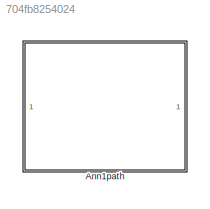
MODEL slx_704fb8254024
KIND library
CONFIG AbsTol = auto
CONFIG EnableMultiTasking = off
CONFIG FixedStep = auto
CONFIG MaxStep = auto
CONFIG MinStep = auto
CONFIG RelTol = 1e-3
CONFIG SampleTimeConstraint = Unconstrained
CONFIG SolverName = VariableStepAuto
CONFIG StartTime = 0.0
CONFIG StopTime = 10.0
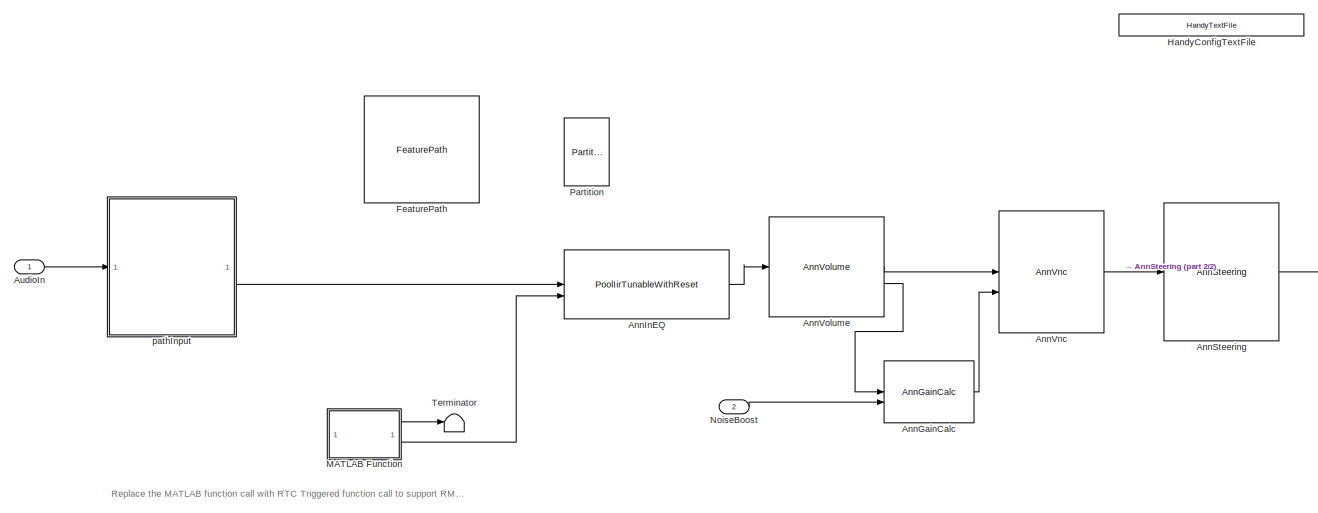
[diagram: Ann1path - part 1/2, left side, full height]
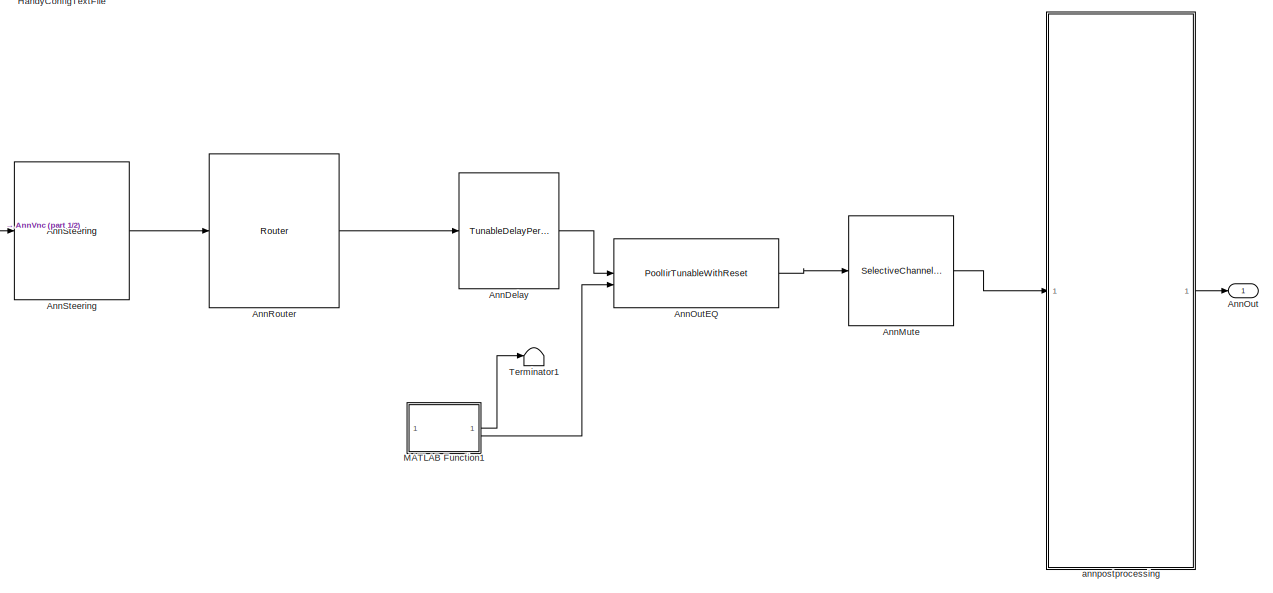
[diagram: Ann1path - part 2/2, right side, full height]
BLOCK [SubSystem] Ann1path
  LibrarySourceBlock = Ann1Path/Ann1path
  TreatAsAtomicUnit = on
BLOCK [Reference] Ann1path/AnnDelay  REF=TunableDelayBtc/TunableDelayPerChannel
  SourceBlock = TunableDelayBtc/TunableDelayPerChannel
  SourceProductName = Bose Blocklib
  SourceType = Tunable Delay
BLOCK [Reference] Ann1path/AnnGainCalc  REF=AnnGainCalcBtc/AnnGainCalc
  SourceBlock = AnnGainCalcBtc/AnnGainCalc
  SourceProductName = Bose Blocklib
  SourceType = Blocklib AnnGainCalc
BLOCK [Reference] Ann1path/AnnInEQ  REF=PoolIir/PoolIirTunableWithReset
  SourceBlock = PoolIir/PoolIirTunableWithReset
  SourceType = Bose Pool IIR Tunable
BLOCK [Reference] Ann1path/AnnMute  REF=SelectiveChannelMuteBtc/SelectiveChannelMute
  SourceBlock = SelectiveChannelMuteBtc/SelectiveChannelMute
  SourceProductName = Bose Blocklib
  SourceType = Bose Selective Channel Mute
BLOCK [Outport] Ann1path/AnnOut
BLOCK [Reference] Ann1path/AnnOutEQ  REF=PoolIir/PoolIirTunableWithReset
  SourceBlock = PoolIir/PoolIirTunableWithReset
  SourceType = Bose Pool IIR Tunable
BLOCK [Reference] Ann1path/AnnRouter  REF=RouterBtc/Router
  SourceBlock = RouterBtc/Router
  SourceProductName = Bose Blocklib
  SourceType = Blocklib Router
BLOCK [Reference] Ann1path/AnnSteering  REF=AnnSteeringBtc/AnnSteering
  SourceBlock = AnnSteeringBtc/AnnSteering
  SourceProductName = Bose Blocklib
  SourceType = Blocklib AnnSteering
BLOCK [Reference] Ann1path/AnnVnc  REF=AnnVncBtc/AnnVnc
  SourceBlock = AnnVncBtc/AnnVnc
  SourceProductName = Bose Blocklib
  SourceType = Blocklib AnnVnc
BLOCK [Reference] Ann1path/AnnVolume  REF=AnnVolumeBtc/AnnVolume
  SourceBlock = AnnVolumeBtc/AnnVolume
  SourceProductName = Bose Blocklib
  SourceType = Blocklib AnnVolume
BLOCK [Inport] Ann1path/AudioIn
BLOCK [Reference] Ann1path/FeaturePath  REF=FeaturePath/FeaturePath
  SourceBlock = FeaturePath/FeaturePath
  SourceProductName = Bose Talaria
  SourceType = Talaria Feature Path
BLOCK [Reference] Ann1path/HandyConfigTextFile  REF=HandyTextFile/HandyTextFile
  SourceBlock = HandyTextFile/HandyTextFile
  SourceProductName = Bose Talaria
  SourceType = Talaria Handy Text File
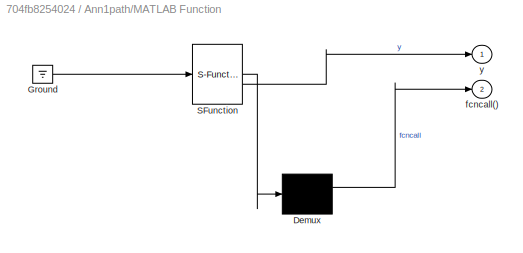
BLOCK [SubSystem] Ann1path/MATLAB Function
  ErrorFcn = Stateflow.Translate.translate
  LibrarySourceBlock = simulink/User-Defined\nFunctions/MATLAB Function
  PermitHierarchicalResolution = ExplicitOnly
  SFBlockType = MATLAB Function
  TreatAsAtomicUnit = on
BLOCK [Demux] Ann1path/MATLAB Function/ Demux 
  Outputs = 1
BLOCK [Ground] Ann1path/MATLAB Function/ Ground 
BLOCK [S-Function] Ann1path/MATLAB Function/ SFunction 
  EnableBusSupport = off
  FunctionName = sf_sfun
  PortCounts = [1 2]
  SFcnIsStateOwnerBlock = off
  SFunctionDeploymentMode = off
  Tag = Stateflow S-Function 2
BLOCK [Outport] Ann1path/MATLAB Function/fcncall()
  Port = 2
BLOCK [Outport] Ann1path/MATLAB Function/y
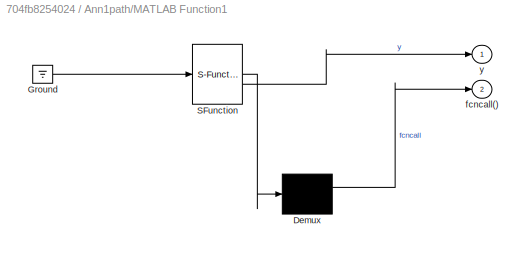
BLOCK [SubSystem] Ann1path/MATLAB Function1
  ErrorFcn = Stateflow.Translate.translate
  LibrarySourceBlock = simulink/User-Defined\nFunctions/MATLAB Function
  PermitHierarchicalResolution = ExplicitOnly
  SFBlockType = MATLAB Function
  TreatAsAtomicUnit = on
BLOCK [Demux] Ann1path/MATLAB Function1/ Demux 
  Outputs = 1
BLOCK [Ground] Ann1path/MATLAB Function1/ Ground 
BLOCK [S-Function] Ann1path/MATLAB Function1/ SFunction 
  EnableBusSupport = off
  FunctionName = sf_sfun
  PortCounts = [1 2]
  SFcnIsStateOwnerBlock = off
  SFunctionDeploymentMode = off
  Tag = Stateflow S-Function 1
BLOCK [Outport] Ann1path/MATLAB Function1/fcncall()
  Port = 2
BLOCK [Outport] Ann1path/MATLAB Function1/y
BLOCK [Inport] Ann1path/NoiseBoost
  Port = 2
BLOCK [Reference] Ann1path/Partition  REF=FeaturePath/Partition
  SourceBlock = FeaturePath/Partition
  SourceProductName = Bose Talaria
  SourceType = Talaria Partition
BLOCK [Terminator] Ann1path/Terminator
BLOCK [Terminator] Ann1path/Terminator1
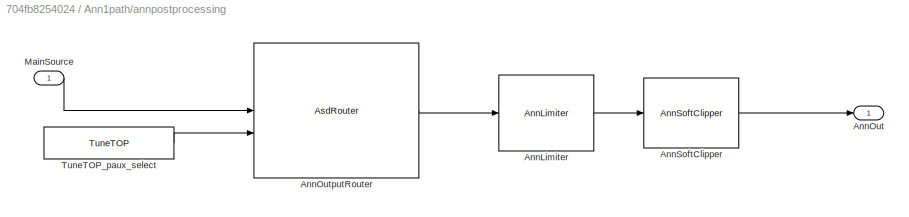
BLOCK [SubSystem] Ann1path/annpostprocessing
  FunctionWithSeparateData = on
  RTWFcnNameOpts = Use subsystem name
  RTWFileNameOpts = Use subsystem name
  RTWSystemCode = Nonreusable function
  TreatAsAtomicUnit = on
BLOCK [Reference] Ann1path/annpostprocessing/AnnLimiter  REF=AnnLimiterBtc/AnnLimiter
  SourceBlock = AnnLimiterBtc/AnnLimiter
  SourceProductName = Bose Blocklib
  SourceType = Blocklib AnnLimiter
BLOCK [Outport] Ann1path/annpostprocessing/AnnOut
BLOCK [Reference] Ann1path/annpostprocessing/AnnOutputRouter  REF=AsdRouterBtc/AsdRouter
  SourceBlock = AsdRouterBtc/AsdRouter
  SourceProductName = Bose Blocklib
  SourceType = Blocklib AsdRouter
BLOCK [Reference] Ann1path/annpostprocessing/AnnSoftClipper  REF=AnnSoftClipperBtc/AnnSoftClipper
  SourceBlock = AnnSoftClipperBtc/AnnSoftClipper
  SourceProductName = Bose Blocklib
  SourceType = Blocklib AnnSoftClipper
BLOCK [Inport] Ann1path/annpostprocessing/MainSource
BLOCK [Reference] Ann1path/annpostprocessing/TuneTOP_paux_select  REF=TuneVar/TuneTOP
  SourceBlock = TuneVar/TuneTOP
  SourceProductName = Bose Talaria
  SourceType = Talaria Trivial Tune TOP
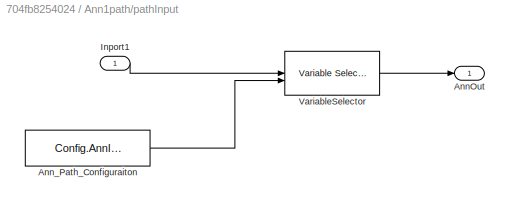
BLOCK [SubSystem] Ann1path/pathInput
BLOCK [Outport] Ann1path/pathInput/AnnOut
  VectorParamsAs1DForOutWhenUnconnected = off
BLOCK [Constant] Ann1path/pathInput/Ann_Path_Configuraiton
  OutDataTypeStr = single
  Value = Config.AnnInputSelect
  VectorParams1D = off
BLOCK [Inport] Ann1path/pathInput/Inport1
BLOCK [Reference] Ann1path/pathInput/VariableSelector  REF=dspindex/Variable
Selector
  SourceBlock = dspindex/Variable\nSelector
  SourceType = Variable Selector
ANNOTATION Ann1path: Replace the MATLAB function call with RTC Triggered function call to support RMDL Shutdown
LINE Ann1path/AnnDelay:1 -> Ann1path/AnnOutEQ:1
LINE Ann1path/AnnGainCalc:1 -> Ann1path/AnnVnc:2
LINE Ann1path/AnnInEQ:1 -> Ann1path/AnnVolume:1
LINE Ann1path/AnnMute:1 -> Ann1path/annpostprocessing:1
LINE Ann1path/AnnOutEQ:1 -> Ann1path/AnnMute:1
LINE Ann1path/AnnRouter:1 -> Ann1path/AnnDelay:1
LINE Ann1path/AnnSteering:1 -> Ann1path/AnnRouter:1
LINE Ann1path/AnnVnc:1 -> Ann1path/AnnSteering:1
LINE Ann1path/AnnVolume:1 -> Ann1path/AnnVnc:1
LINE Ann1path/AnnVolume:2 -> Ann1path/AnnGainCalc:1
LINE Ann1path/AudioIn:1 -> Ann1path/pathInput:1
LINE Ann1path/MATLAB Function1:1 -> Ann1path/Terminator1:1
LINE Ann1path/MATLAB Function1:2 -> Ann1path/AnnOutEQ:2
LINE Ann1path/MATLAB Function:1 -> Ann1path/Terminator:1
LINE Ann1path/MATLAB Function:2 -> Ann1path/AnnInEQ:2
LINE Ann1path/NoiseBoost:1 -> Ann1path/AnnGainCalc:2
LINE Ann1path/annpostprocessing/AnnLimiter:1 -> Ann1path/annpostprocessing/AnnSoftClipper:1
LINE Ann1path/annpostprocessing/AnnOutputRouter:1 -> Ann1path/annpostprocessing/AnnLimiter:1
LINE Ann1path/annpostprocessing/AnnSoftClipper:1 -> Ann1path/annpostprocessing/AnnOut:1
LINE Ann1path/annpostprocessing/MainSource:1 -> Ann1path/annpostprocessing/AnnOutputRouter:1
LINE Ann1path/annpostprocessing/TuneTOP_paux_select:1 -> Ann1path/annpostprocessing/AnnOutputRouter:2
LINE Ann1path/annpostprocessing:1 -> Ann1path/AnnOut:1
LINE Ann1path/pathInput/Ann_Path_Configuraiton:1 -> Ann1path/pathInput/VariableSelector:2
LINE Ann1path/pathInput/Inport1:1 -> Ann1path/pathInput/VariableSelector:1
LINE Ann1path/pathInput/VariableSelector:1 -> Ann1path/pathInput/AnnOut:1
LINE Ann1path/pathInput:1 -> Ann1path/AnnInEQ:1
CHART Ann1path/MATLAB Function states=1 transitions=1
  STATE_LABEL 'eML_blk_kernel()'
  STATE_LABEL 'SCRIPT:\nfunction y = fcn\n\ny = true;\n'
CHART Ann1path/MATLAB Function1 states=1 transitions=1
  STATE_LABEL 'eML_blk_kernel()'
  STATE_LABEL 'SCRIPT:\nfunction y = fcn\n\ny = true;\n'
CHART  states=0 transitions=0
CHART  states=0 transitions=0
